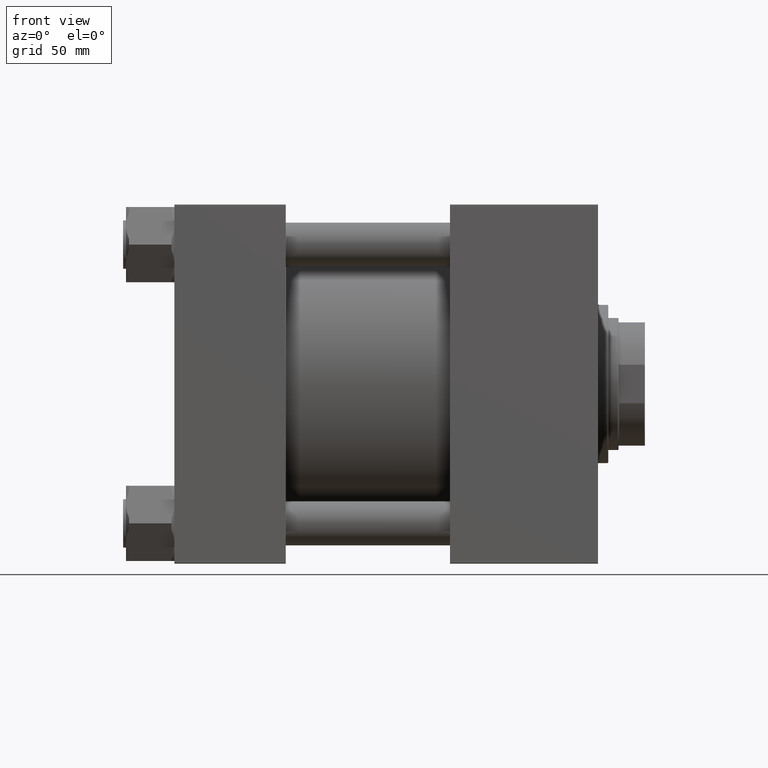
[diagram: clean part render]
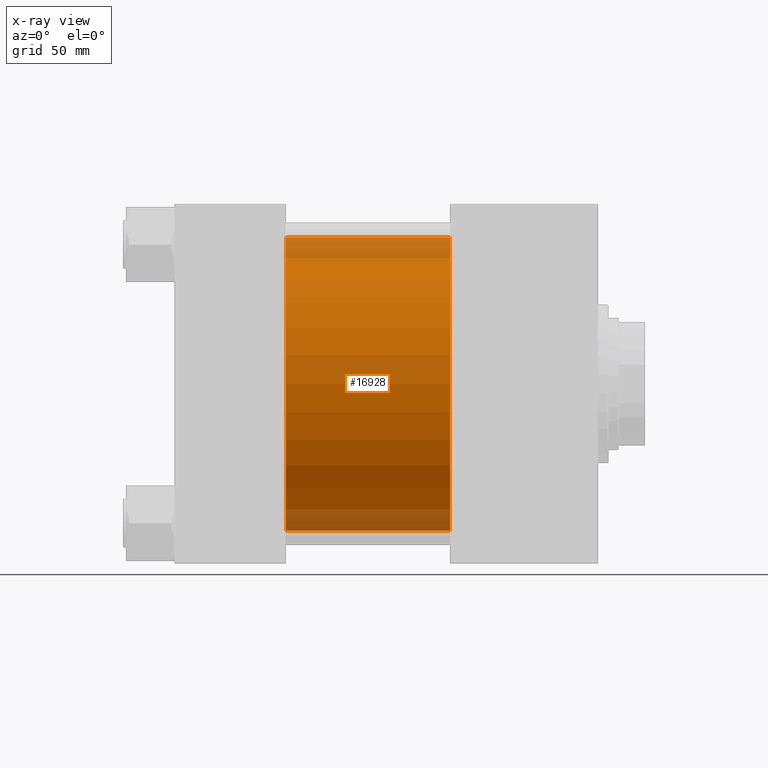
[diagram: x-ray — body ghosted, one internal face saturated and labeled with its STEP entity id]
A machine part, front view, then the same camera in x-ray: the body is ghosted and one INTERNAL B-rep face — a face not visible from any outside direction — is saturated and labeled: STEP entity #16928.
In plain terms, the highlighted cylindrical surface (partial cylindrical patch) has radius 100 mm, axis along (-1, -0, -0).
Its self-contained STEP definition (entity closure, byte-faithful):
#2785 = CYLINDRICAL_SURFACE ( 'NONE', #17741, 100.0000000000000000 ) ;
#3044 = DIRECTION ( 'NONE',  ( 0.000000000000000000, 0.000000000000000000, 1.000000000000000000 ) ) ;
#4596 = DIRECTION ( 'NONE',  ( 1.000000000000000000, 0.000000000000000000, 0.000000000000000000 ) ) ;
#5784 = VERTEX_POINT ( 'NONE', #17111 ) ;
#9006 = ORIENTED_EDGE ( 'NONE', *, *, #47381, .F. ) ;
#9766 = AXIS2_PLACEMENT_3D ( 'NONE', #38427, #42770, #42005 ) ;
#15260 = CARTESIAN_POINT ( 'NONE',  ( 76.00000000000000000, 9.644382777508321529E-15, -100.0000000000000000 ) ) ;
#16881 = CARTESIAN_POINT ( 'NONE',  ( 188.0000000000000000, -2.602085213965210642E-15, 0.000000000000000000 ) ) ;
#16928 = ADVANCED_FACE ( 'NONE', ( #38161 ), #2785, .F. ) ;
#17111 = CARTESIAN_POINT ( 'NONE',  ( 188.0000000000000000, 9.644382777508321529E-15, -100.0000000000000000 ) ) ;
#17741 = AXIS2_PLACEMENT_3D ( 'NONE', #34053, #49714, #3044 ) ;
#19077 = CARTESIAN_POINT ( 'NONE',  ( 188.0000000000000000, 9.644382777508321529E-15, -100.0000000000000000 ) ) ;
#21227 = VECTOR ( 'NONE', #37578, 1000.000000000000000 ) ;
#21310 = CIRCLE ( 'NONE', #26995, 100.0000000000000000 ) ;
#25969 = EDGE_CURVE ( 'NONE', #5784, #38123, #42146, .T. ) ;
#26181 = VERTEX_POINT ( 'NONE', #29549 ) ;
#26995 = AXIS2_PLACEMENT_3D ( 'NONE', #16881, #4596, #44300 ) ;
#29549 = CARTESIAN_POINT ( 'NONE',  ( 188.0000000000000000, -2.602085213965210642E-15, 100.0000000000000000 ) ) ;
#31882 = CIRCLE ( 'NONE', #9766, 100.0000000000000000 ) ;
#32960 = CARTESIAN_POINT ( 'NONE',  ( 76.00000000000000000, -2.602085213965210642E-15, 100.0000000000000000 ) ) ;
#34053 = CARTESIAN_POINT ( 'NONE',  ( 188.0000000000000000, -2.602085213965210642E-15, 0.000000000000000000 ) ) ;
#37327 = LINE ( 'NONE', #41416, #21227 ) ;
#37578 = DIRECTION ( 'NONE',  ( -1.000000000000000000, -0.000000000000000000, -0.000000000000000000 ) ) ;
#38055 = DIRECTION ( 'NONE',  ( -1.000000000000000000, -0.000000000000000000, -0.000000000000000000 ) ) ;
#38123 = VERTEX_POINT ( 'NONE', #15260 ) ;
#38161 = FACE_OUTER_BOUND ( 'NONE', #43057, .T. ) ;
#38427 = CARTESIAN_POINT ( 'NONE',  ( 76.00000000000000000, -2.602085213965210642E-15, 0.000000000000000000 ) ) ;
#39218 = VECTOR ( 'NONE', #38055, 1000.000000000000000 ) ;
#41416 = CARTESIAN_POINT ( 'NONE',  ( 188.0000000000000000, -2.602085213965210642E-15, 100.0000000000000000 ) ) ;
#42005 = DIRECTION ( 'NONE',  ( 0.000000000000000000, 0.000000000000000000, -1.000000000000000000 ) ) ;
#42146 = LINE ( 'NONE', #19077, #39218 ) ;
#42770 = DIRECTION ( 'NONE',  ( 1.000000000000000000, 0.000000000000000000, 0.000000000000000000 ) ) ;
#43057 = EDGE_LOOP ( 'NONE', ( #50054, #48145, #49440, #9006 ) ) ;
#44300 = DIRECTION ( 'NONE',  ( 0.000000000000000000, 0.000000000000000000, -1.000000000000000000 ) ) ;
#47362 = VERTEX_POINT ( 'NONE', #32960 ) ;
#47381 = EDGE_CURVE ( 'NONE', #26181, #47362, #37327, .T. ) ;
#48145 = ORIENTED_EDGE ( 'NONE', *, *, #25969, .T. ) ;
#49384 = EDGE_CURVE ( 'NONE', #47362, #38123, #31882, .T. ) ;
#49440 = ORIENTED_EDGE ( 'NONE', *, *, #49384, .F. ) ;
#49714 = DIRECTION ( 'NONE',  ( -1.000000000000000000, -0.000000000000000000, -0.000000000000000000 ) ) ;
#50054 = ORIENTED_EDGE ( 'NONE', *, *, #50309, .T. ) ;
#50309 = EDGE_CURVE ( 'NONE', #26181, #5784, #21310, .T. ) ;